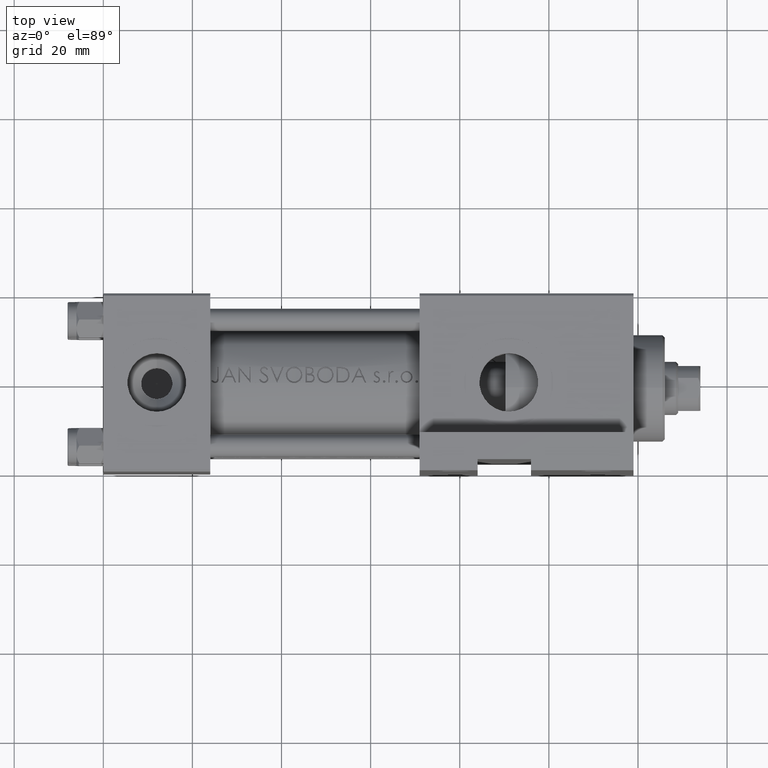
[diagram: clean part render]
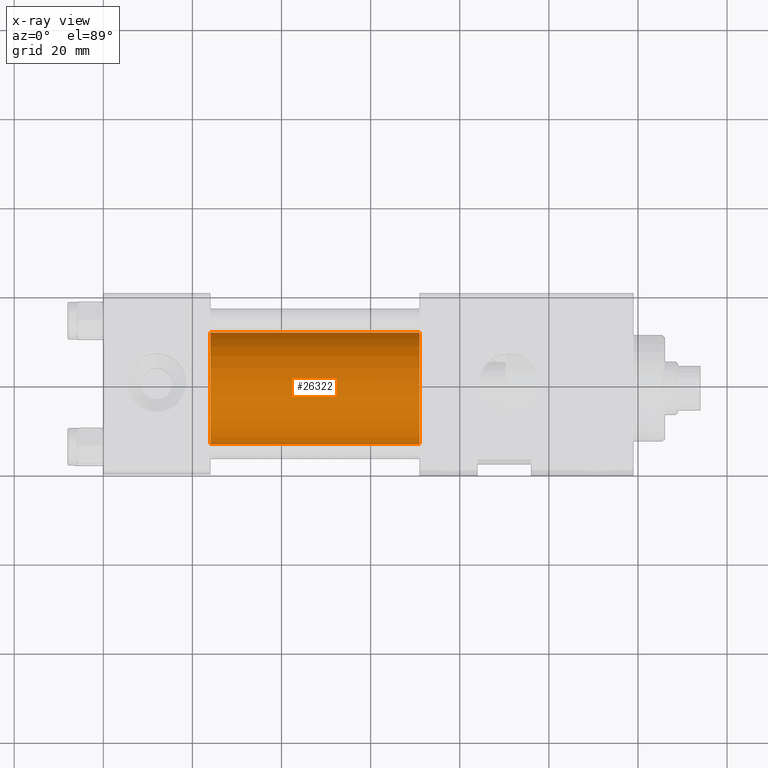
[diagram: x-ray — body ghosted, one internal face saturated and labeled with its STEP entity id]
A machine part, top view, then the same camera in x-ray: the body is ghosted and one INTERNAL B-rep face — a face not visible from any outside direction — is saturated and labeled: STEP entity #26322.
In plain terms, the highlighted cylindrical surface (partial cylindrical patch) has radius 12.5 mm, axis along (-1, -0, 0).
Its self-contained STEP definition (entity closure, byte-faithful):
#964 = CARTESIAN_POINT ( 'NONE',  ( 24.00000000000000000, 0.000000000000000000, 11.49999999999998934 ) ) ;
#2461 = VERTEX_POINT ( 'NONE', #964 ) ;
#3082 = DIRECTION ( 'NONE',  ( 1.000000000000000000, 0.000000000000000000, 0.000000000000000000 ) ) ;
#4506 = EDGE_LOOP ( 'NONE', ( #7434, #42726, #46536, #49533 ) ) ;
#5273 = CARTESIAN_POINT ( 'NONE',  ( 71.00000000000001421, 1.530808498934191127E-15, -13.50000000000000533 ) ) ;
#6887 = EDGE_CURVE ( 'NONE', #16415, #2461, #7133, .T. ) ;
#6940 = CYLINDRICAL_SURFACE ( 'NONE', #16236, 12.49999999999999645 ) ;
#7104 = CARTESIAN_POINT ( 'NONE',  ( 71.00000000000001421, 0.000000000000000000, -1.000000000000007772 ) ) ;
#7133 = LINE ( 'NONE', #41469, #10954 ) ;
#7434 = ORIENTED_EDGE ( 'NONE', *, *, #30347, .T. ) ;
#8241 = AXIS2_PLACEMENT_3D ( 'NONE', #8703, #43042, #39493 ) ;
#8703 = CARTESIAN_POINT ( 'NONE',  ( 24.00000000000000000, 0.000000000000000000, -1.000000000000007772 ) ) ;
#10954 = VECTOR ( 'NONE', #29718, 1000.000000000000000 ) ;
#14483 = DIRECTION ( 'NONE',  ( -1.000000000000000000, -0.000000000000000000, -0.000000000000000000 ) ) ;
#16236 = AXIS2_PLACEMENT_3D ( 'NONE', #22746, #14483, #18222 ) ;
#16415 = VERTEX_POINT ( 'NONE', #17680 ) ;
#17314 = DIRECTION ( 'NONE',  ( -1.000000000000000000, -0.000000000000000000, -0.000000000000000000 ) ) ;
#17680 = CARTESIAN_POINT ( 'NONE',  ( 71.00000000000001421, 0.000000000000000000, 11.49999999999998934 ) ) ;
#18222 = DIRECTION ( 'NONE',  ( 0.000000000000000000, 0.000000000000000000, 1.000000000000000000 ) ) ;
#18385 = DIRECTION ( 'NONE',  ( 0.000000000000000000, 0.000000000000000000, -1.000000000000000000 ) ) ;
#21093 = EDGE_CURVE ( 'NONE', #45346, #23015, #39599, .T. ) ;
#21769 = CARTESIAN_POINT ( 'NONE',  ( 24.00000000000000000, 1.530808498934191127E-15, -13.50000000000000533 ) ) ;
#22746 = CARTESIAN_POINT ( 'NONE',  ( 71.00000000000001421, 0.000000000000000000, -1.000000000000007772 ) ) ;
#23015 = VERTEX_POINT ( 'NONE', #21769 ) ;
#23905 = EDGE_CURVE ( 'NONE', #2461, #23015, #48264, .T. ) ;
#26322 = ADVANCED_FACE ( 'NONE', ( #49308 ), #6940, .F. ) ;
#29718 = DIRECTION ( 'NONE',  ( -1.000000000000000000, -0.000000000000000000, -0.000000000000000000 ) ) ;
#30347 = EDGE_CURVE ( 'NONE', #16415, #45346, #49188, .T. ) ;
#30559 = CARTESIAN_POINT ( 'NONE',  ( 71.00000000000001421, 1.530808498934191127E-15, -13.50000000000000533 ) ) ;
#36139 = VECTOR ( 'NONE', #17314, 1000.000000000000000 ) ;
#39493 = DIRECTION ( 'NONE',  ( 0.000000000000000000, 0.000000000000000000, -1.000000000000000000 ) ) ;
#39599 = LINE ( 'NONE', #5273, #36139 ) ;
#41469 = CARTESIAN_POINT ( 'NONE',  ( 71.00000000000001421, 0.000000000000000000, 11.49999999999998934 ) ) ;
#42726 = ORIENTED_EDGE ( 'NONE', *, *, #21093, .T. ) ;
#43042 = DIRECTION ( 'NONE',  ( 1.000000000000000000, 0.000000000000000000, 0.000000000000000000 ) ) ;
#43553 = AXIS2_PLACEMENT_3D ( 'NONE', #7104, #3082, #18385 ) ;
#45346 = VERTEX_POINT ( 'NONE', #30559 ) ;
#46536 = ORIENTED_EDGE ( 'NONE', *, *, #23905, .F. ) ;
#48264 = CIRCLE ( 'NONE', #8241, 12.49999999999999645 ) ;
#49188 = CIRCLE ( 'NONE', #43553, 12.49999999999999645 ) ;
#49308 = FACE_OUTER_BOUND ( 'NONE', #4506, .T. ) ;
#49533 = ORIENTED_EDGE ( 'NONE', *, *, #6887, .F. ) ;